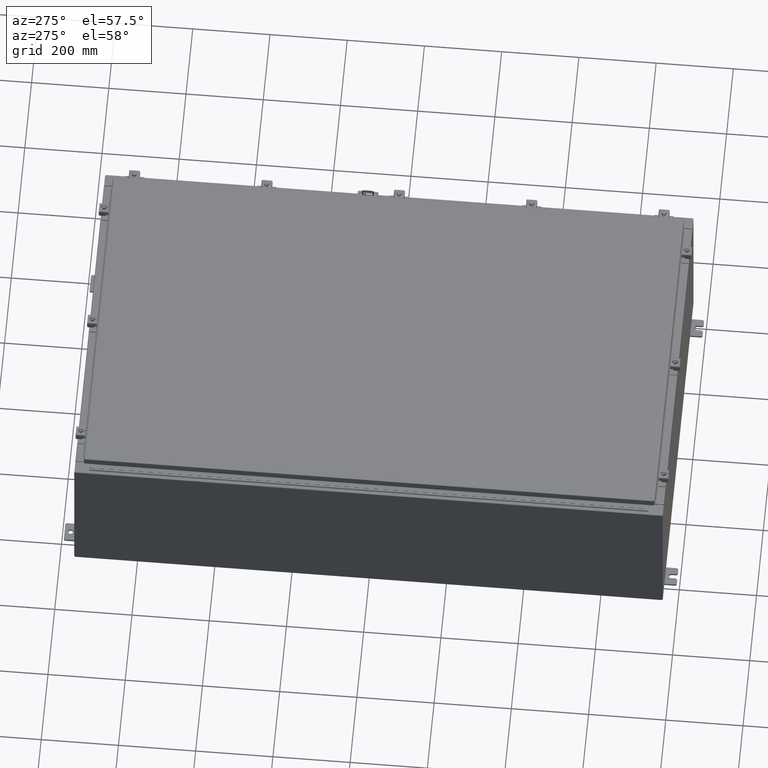
[diagram: clean part render]
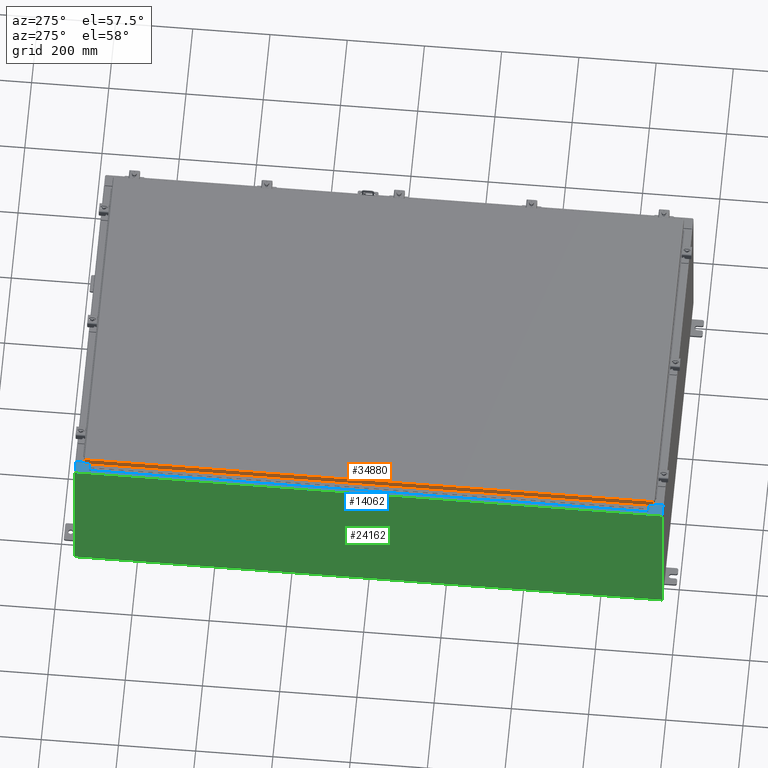
[diagram: same view with three faces highlighted in distinct colors, each labeled with its STEP entity id]
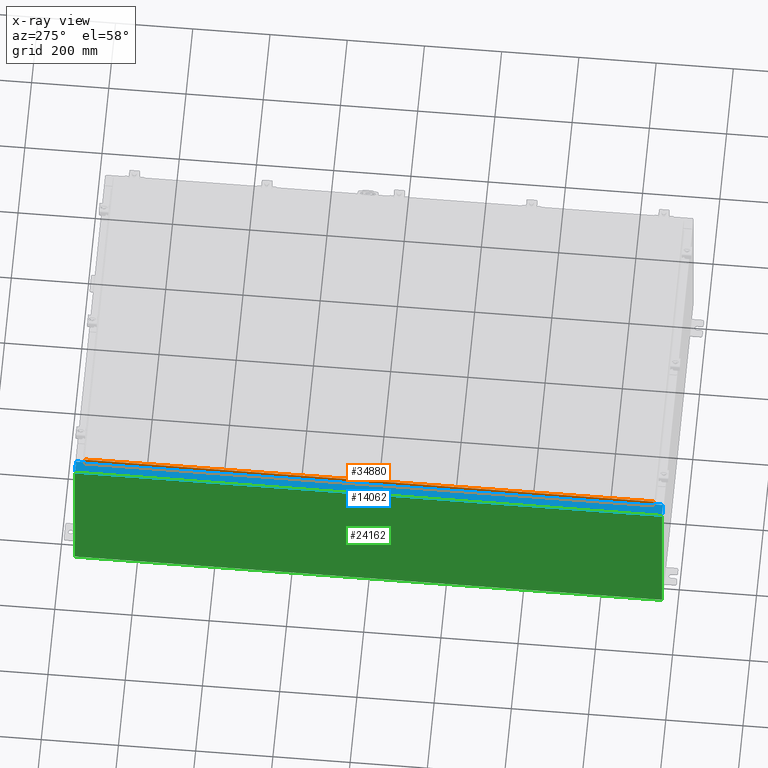
[diagram: x-ray of the same camera — body ghosted, the three highlighted faces saturated]
A machine part, auxiliary view with three faces highlighted in distinct colors.
The next image is the same camera in x-ray (body ghosted, the three faces saturated) — at least one of them is partly hidden behind the body in this view.
Their STEP definitions:

[orange] entity #34880 — the highlighted planar face has unit normal (1, -0, -0).
#1297 = DIRECTION ( 'NONE',  ( -3.034122441942816100E-015, 6.982962677686265900E-015, -1.000000000000000000 ) ) ;
#3169 = AXIS2_PLACEMENT_3D ( 'NONE', #19242, #53329, #24191 ) ;
#5973 = ORIENTED_EDGE ( 'NONE', *, *, #30756, .T. ) ;
#8525 = CARTESIAN_POINT ( 'NONE',  ( -17.07799999999999900, -29.09400000000000100, -0.08770000000000004200 ) ) ;
#11479 = VERTEX_POINT ( 'NONE', #31662 ) ;
#13355 = DIRECTION ( 'NONE',  ( -7.511783855542057500E-017, -1.000000000000000000, -7.511783855542072300E-017 ) ) ;
#15334 = CARTESIAN_POINT ( 'NONE',  ( -17.07799999999999900, -29.00515786437626500, -0.08769999999999787700 ) ) ;
#15352 = VECTOR ( 'NONE', #1297, 39.37007874015748100 ) ;
#18753 = VECTOR ( 'NONE', #13355, 39.37007874015748100 ) ;
#19242 = CARTESIAN_POINT ( 'NONE',  ( -17.07799999999999600, 1.282862446849468500E-015, 5.207755671951099000E-014 ) ) ;
#20959 = CARTESIAN_POINT ( 'NONE',  ( -17.07800000000000300, -29.00515786437626200, -0.7949999999999996000 ) ) ;
#22305 = VERTEX_POINT ( 'NONE', #15334 ) ;
#22413 = VERTEX_POINT ( 'NONE', #35809 ) ;
#24191 = DIRECTION ( 'NONE',  ( -3.034122441942816500E-015, 0.0000000000000000000, -1.000000000000000000 ) ) ;
#27842 = DIRECTION ( 'NONE',  ( -3.034122441942816100E-015, 6.982962677686265900E-015, -1.000000000000000000 ) ) ;
#29674 = VECTOR ( 'NONE', #27842, 39.37007874015748100 ) ;
#29874 = LINE ( 'NONE', #35324, #15352 ) ;
#30756 = EDGE_CURVE ( 'NONE', #22413, #11479, #29874, .T. ) ;
#31200 = LINE ( 'NONE', #37677, #29674 ) ;
#31662 = CARTESIAN_POINT ( 'NONE',  ( -17.07799999999999600, 29.00515786437626500, -0.7949999999999926000 ) ) ;
#34880 = ADVANCED_FACE ( 'NONE', ( #40405 ), #48471, .F. ) ;
#35324 = CARTESIAN_POINT ( 'NONE',  ( -17.07799999999999600, 29.00515786437626500, 2.546194915468487600E-013 ) ) ;
#35809 = CARTESIAN_POINT ( 'NONE',  ( -17.07799999999999600, 29.00515786437626500, -0.08769999999999567000 ) ) ;
#37677 = CARTESIAN_POINT ( 'NONE',  ( -17.07799999999999900, -29.00515786437626500, -0.07469999999999976700 ) ) ;
#38834 = EDGE_CURVE ( 'NONE', #58945, #11479, #42824, .T. ) ;
#39747 = ORIENTED_EDGE ( 'NONE', *, *, #42505, .F. ) ;
#40405 = FACE_OUTER_BOUND ( 'NONE', #50905, .T. ) ;
#42505 = EDGE_CURVE ( 'NONE', #22413, #22305, #57663, .T. ) ;
#42824 = LINE ( 'NONE', #50530, #54193 ) ;
#45783 = EDGE_CURVE ( 'NONE', #22305, #58945, #31200, .T. ) ;
#48471 = PLANE ( 'NONE',  #3169 ) ;
#50530 = CARTESIAN_POINT ( 'NONE',  ( -17.07800000000000300, -29.09400000000000100, -0.7949999999999997100 ) ) ;
#50905 = EDGE_LOOP ( 'NONE', ( #39747, #5973, #59512, #51317 ) ) ;
#51317 = ORIENTED_EDGE ( 'NONE', *, *, #45783, .F. ) ;
#53329 = DIRECTION ( 'NONE',  ( 1.000000000000000000, -7.511783855542035400E-017, -3.034122441942816500E-015 ) ) ;
#54193 = VECTOR ( 'NONE', #55415, 39.37007874015748100 ) ;
#55415 = DIRECTION ( 'NONE',  ( 7.511783855542072300E-017, 1.000000000000000000, 1.220664876525586700E-016 ) ) ;
#57663 = LINE ( 'NONE', #8525, #18753 ) ;
#58945 = VERTEX_POINT ( 'NONE', #20959 ) ;
#59512 = ORIENTED_EDGE ( 'NONE', *, *, #38834, .F. ) ;

[blue] entity #14062 — the highlighted planar face has unit normal (0, 0, -1).
#199 = VECTOR ( 'NONE', #5164, 39.37007874015748100 ) ;
#243 = CARTESIAN_POINT ( 'NONE',  ( -16.69970000000005700, 29.92529999999998900, 15.92530000000000500 ) ) ;
#938 = CARTESIAN_POINT ( 'NONE',  ( -16.75005000000005900, -28.59374999999999300, 15.92530000000000500 ) ) ;
#2490 = VECTOR ( 'NONE', #51860, 39.37007874015748100 ) ;
#2727 = CARTESIAN_POINT ( 'NONE',  ( -16.71270000000005900, -28.59374999999999300, 15.92530000000000500 ) ) ;
#3285 = CIRCLE ( 'NONE', #25313, 0.01867499999999949400 ) ;
#4526 = EDGE_CURVE ( 'NONE', #42860, #51228, #14998, .T. ) ;
#4803 = LINE ( 'NONE', #54142, #29152 ) ;
#5164 = DIRECTION ( 'NONE',  ( -1.000000000000000000, -4.379057701015053300E-047, -7.132762385546384700E-015 ) ) ;
#5585 = CARTESIAN_POINT ( 'NONE',  ( -1.138521944745543500E-013, -5.815213060988774200E-016, 15.92530000000012600 ) ) ;
#6009 = CARTESIAN_POINT ( 'NONE',  ( -16.69970000000005700, 28.63109999999998900, 15.92530000000000500 ) ) ;
#7473 = VECTOR ( 'NONE', #43420, 39.37007874015748100 ) ;
#7785 = CARTESIAN_POINT ( 'NONE',  ( -16.69970000000005700, -5.815213060988729800E-016, 15.92530000000000500 ) ) ;
#8145 = CARTESIAN_POINT ( 'NONE',  ( -16.75005000000005900, 28.59374999999999300, 15.92530000000000500 ) ) ;
#8875 = LINE ( 'NONE', #53649, #56041 ) ;
#9809 = CARTESIAN_POINT ( 'NONE',  ( -17.91230000000005500, -29.92530000000001100, 15.92529999999999800 ) ) ;
#10307 = VERTEX_POINT ( 'NONE', #61260 ) ;
#10463 = DIRECTION ( 'NONE',  ( 7.132762385546384700E-015, 3.651556366905946600E-017, -1.000000000000000000 ) ) ;
#10971 = CARTESIAN_POINT ( 'NONE',  ( -16.69970000000005700, -29.92530000000001800, 15.92530000000000400 ) ) ;
#11414 = VERTEX_POINT ( 'NONE', #21208 ) ;
#11557 = VECTOR ( 'NONE', #54524, 39.37007874015748100 ) ;
#11887 = EDGE_CURVE ( 'NONE', #10307, #28354, #4803, .T. ) ;
#12157 = CARTESIAN_POINT ( 'NONE',  ( -16.69970000000005700, -5.815213060988729800E-016, 15.92530000000000500 ) ) ;
#12456 = EDGE_CURVE ( 'NONE', #28354, #33319, #26005, .T. ) ;
#13098 = LINE ( 'NONE', #34334, #199 ) ;
#14062 = ADVANCED_FACE ( 'NONE', ( #24515 ), #24930, .F. ) ;
#14213 = CARTESIAN_POINT ( 'NONE',  ( -17.91230000000005500, 29.92529999999998900, 15.92530000000000000 ) ) ;
#14998 = LINE ( 'NONE', #7785, #26441 ) ;
#15381 = DIRECTION ( 'NONE',  ( -0.0000000000000000000, -1.000000000000000000, -0.0000000000000000000 ) ) ;
#15887 = VERTEX_POINT ( 'NONE', #6009 ) ;
#17643 = DIRECTION ( 'NONE',  ( -1.000000000000000000, 0.0000000000000000000, 0.0000000000000000000 ) ) ;
#18295 = EDGE_CURVE ( 'NONE', #47688, #51228, #8875, .T. ) ;
#19550 = DIRECTION ( 'NONE',  ( 1.000000000000000000, 0.0000000000000000000, 0.0000000000000000000 ) ) ;
#20936 = DIRECTION ( 'NONE',  ( -7.132762385546384700E-015, -3.651556366905946600E-017, 1.000000000000000000 ) ) ;
#21094 = ORIENTED_EDGE ( 'NONE', *, *, #48417, .F. ) ;
#21208 = CARTESIAN_POINT ( 'NONE',  ( -17.91230000000005500, 29.92529999999998900, 15.92530000000000000 ) ) ;
#21434 = DIRECTION ( 'NONE',  ( 1.000000000000000000, 0.0000000000000000000, 0.0000000000000000000 ) ) ;
#22376 = LINE ( 'NONE', #12157, #48286 ) ;
#22950 = DIRECTION ( 'NONE',  ( -7.132762385546384700E-015, -3.651556366905946600E-017, 1.000000000000000000 ) ) ;
#23536 = AXIS2_PLACEMENT_3D ( 'NONE', #52092, #22950, #56982 ) ;
#23863 = ORIENTED_EDGE ( 'NONE', *, *, #18295, .F. ) ;
#24515 = FACE_OUTER_BOUND ( 'NONE', #56693, .T. ) ;
#24930 = PLANE ( 'NONE',  #34098 ) ;
#25313 = AXIS2_PLACEMENT_3D ( 'NONE', #50119, #20936, #55027 ) ;
#26005 = LINE ( 'NONE', #45201, #11557 ) ;
#26441 = VECTOR ( 'NONE', #46716, 39.37007874015748100 ) ;
#27381 = CARTESIAN_POINT ( 'NONE',  ( -2.205772215826502400E-013, -29.92530000000007800, 15.92530000000012400 ) ) ;
#28329 = LINE ( 'NONE', #27381, #2490 ) ;
#28354 = VERTEX_POINT ( 'NONE', #2727 ) ;
#29038 = VERTEX_POINT ( 'NONE', #243 ) ;
#29152 = VECTOR ( 'NONE', #15381, 39.37007874015748100 ) ;
#29852 = ORIENTED_EDGE ( 'NONE', *, *, #11887, .F. ) ;
#30960 = EDGE_CURVE ( 'NONE', #54197, #57899, #51929, .T. ) ;
#31641 = VECTOR ( 'NONE', #17643, 39.37007874015748100 ) ;
#32774 = EDGE_CURVE ( 'NONE', #33319, #47688, #3285, .T. ) ;
#33086 = CARTESIAN_POINT ( 'NONE',  ( -16.69970000000005700, -28.63109999999999600, 15.92530000000000500 ) ) ;
#33319 = VERTEX_POINT ( 'NONE', #938 ) ;
#33838 = ORIENTED_EDGE ( 'NONE', *, *, #54187, .F. ) ;
#34098 = AXIS2_PLACEMENT_3D ( 'NONE', #5585, #10463, #44535 ) ;
#34334 = CARTESIAN_POINT ( 'NONE',  ( -1.138521944745543500E-013, 29.92529999999998900, 15.92530000000012600 ) ) ;
#34674 = ORIENTED_EDGE ( 'NONE', *, *, #50378, .T. ) ;
#35842 = VECTOR ( 'NONE', #21434, 39.37007874015748100 ) ;
#37820 = ORIENTED_EDGE ( 'NONE', *, *, #32774, .F. ) ;
#38310 = CARTESIAN_POINT ( 'NONE',  ( -16.75005000000005900, -28.63109999999998900, 15.92530000000000500 ) ) ;
#39698 = EDGE_CURVE ( 'NONE', #57899, #10307, #48779, .T. ) ;
#41697 = ORIENTED_EDGE ( 'NONE', *, *, #61542, .T. ) ;
#41878 = ORIENTED_EDGE ( 'NONE', *, *, #39698, .F. ) ;
#42007 = CARTESIAN_POINT ( 'NONE',  ( -16.69970000000005700, 28.63109999999998900, 15.92530000000000500 ) ) ;
#42860 = VERTEX_POINT ( 'NONE', #10971 ) ;
#43420 = DIRECTION ( 'NONE',  ( -0.0000000000000000000, 1.000000000000000000, 3.651556366905946600E-017 ) ) ;
#44535 = DIRECTION ( 'NONE',  ( -1.000000000000000000, 0.0000000000000000000, -7.132762385546384700E-015 ) ) ;
#44593 = LINE ( 'NONE', #42007, #31641 ) ;
#45201 = CARTESIAN_POINT ( 'NONE',  ( -16.71270000000005900, -28.59374999999999300, 15.92530000000000500 ) ) ;
#46317 = LINE ( 'NONE', #14213, #7473 ) ;
#46716 = DIRECTION ( 'NONE',  ( 0.0000000000000000000, 1.000000000000000000, 3.651556366905946600E-017 ) ) ;
#47104 = ORIENTED_EDGE ( 'NONE', *, *, #4526, .T. ) ;
#47250 = ORIENTED_EDGE ( 'NONE', *, *, #30960, .F. ) ;
#47688 = VERTEX_POINT ( 'NONE', #38310 ) ;
#48286 = VECTOR ( 'NONE', #56004, 39.37007874015748100 ) ;
#48417 = EDGE_CURVE ( 'NONE', #15887, #54197, #44593, .T. ) ;
#48779 = LINE ( 'NONE', #55500, #35842 ) ;
#50119 = CARTESIAN_POINT ( 'NONE',  ( -16.75005000000005900, -28.61242499999999100, 15.92530000000000500 ) ) ;
#50378 = EDGE_CURVE ( 'NONE', #15887, #29038, #22376, .T. ) ;
#51228 = VERTEX_POINT ( 'NONE', #33086 ) ;
#51758 = ORIENTED_EDGE ( 'NONE', *, *, #60625, .T. ) ;
#51860 = DIRECTION ( 'NONE',  ( 1.000000000000000000, -3.566381192773192400E-015, 7.132762385546384700E-015 ) ) ;
#51929 = CIRCLE ( 'NONE', #23536, 0.01867499999999949400 ) ;
#52092 = CARTESIAN_POINT ( 'NONE',  ( -16.75005000000005900, 28.61242499999999100, 15.92530000000000500 ) ) ;
#53649 = CARTESIAN_POINT ( 'NONE',  ( -16.75005000000005900, -28.63109999999998900, 15.92530000000000500 ) ) ;
#54142 = CARTESIAN_POINT ( 'NONE',  ( -16.71270000000005900, 28.59374999999998200, 15.92530000000000500 ) ) ;
#54187 = EDGE_CURVE ( 'NONE', #58005, #11414, #46317, .T. ) ;
#54197 = VERTEX_POINT ( 'NONE', #62761 ) ;
#54524 = DIRECTION ( 'NONE',  ( -1.000000000000000000, 0.0000000000000000000, 0.0000000000000000000 ) ) ;
#55027 = DIRECTION ( 'NONE',  ( 1.000000000000000000, 0.0000000000000000000, 0.0000000000000000000 ) ) ;
#55500 = CARTESIAN_POINT ( 'NONE',  ( -16.75005000000005900, 28.59374999999999300, 15.92530000000000500 ) ) ;
#56004 = DIRECTION ( 'NONE',  ( 0.0000000000000000000, 1.000000000000000000, 3.651556366905946600E-017 ) ) ;
#56041 = VECTOR ( 'NONE', #19550, 39.37007874015748100 ) ;
#56693 = EDGE_LOOP ( 'NONE', ( #21094, #34674, #51758, #33838, #41697, #47104, #23863, #37820, #59393, #29852, #41878, #47250 ) ) ;
#56982 = DIRECTION ( 'NONE',  ( 1.000000000000000000, 0.0000000000000000000, 0.0000000000000000000 ) ) ;
#57899 = VERTEX_POINT ( 'NONE', #8145 ) ;
#58005 = VERTEX_POINT ( 'NONE', #9809 ) ;
#59393 = ORIENTED_EDGE ( 'NONE', *, *, #12456, .F. ) ;
#60625 = EDGE_CURVE ( 'NONE', #29038, #11414, #13098, .T. ) ;
#61260 = CARTESIAN_POINT ( 'NONE',  ( -16.71270000000005900, 28.59374999999999300, 15.92530000000000500 ) ) ;
#61542 = EDGE_CURVE ( 'NONE', #58005, #42860, #28329, .T. ) ;
#62761 = CARTESIAN_POINT ( 'NONE',  ( -16.75005000000005900, 28.63109999999998900, 15.92530000000000900 ) ) ;

[green] entity #24162 — the highlighted planar face has unit normal (1, 0, 0).
#1067 = DIRECTION ( 'NONE',  ( 0.0000000000000000000, 1.000000000000000000, 0.0000000000000000000 ) ) ;
#2330 = VECTOR ( 'NONE', #36409, 39.37007874015748100 ) ;
#2398 = CARTESIAN_POINT ( 'NONE',  ( -18.00000000000000400, 29.92529999999998900, 0.01299999999999984700 ) ) ;
#3161 = EDGE_CURVE ( 'NONE', #6683, #33118, #26624, .T. ) ;
#4435 = VERTEX_POINT ( 'NONE', #31371 ) ;
#6586 = EDGE_CURVE ( 'NONE', #8618, #33118, #29271, .T. ) ;
#6683 = VERTEX_POINT ( 'NONE', #47044 ) ;
#6944 = DIRECTION ( 'NONE',  ( -3.430827668758847900E-015, 0.0000000000000000000, 1.000000000000000000 ) ) ;
#8618 = VERTEX_POINT ( 'NONE', #46561 ) ;
#15841 = ORIENTED_EDGE ( 'NONE', *, *, #57210, .T. ) ;
#16289 = VECTOR ( 'NONE', #31721, 39.37007874015748100 ) ;
#23884 = VECTOR ( 'NONE', #6944, 39.37007874015748100 ) ;
#24162 = ADVANCED_FACE ( 'NONE', ( #52609 ), #50540, .F. ) ;
#26624 = LINE ( 'NONE', #2398, #2330 ) ;
#29271 = LINE ( 'NONE', #60880, #16289 ) ;
#31152 = DIRECTION ( 'NONE',  ( 3.430827668758847900E-015, 0.0000000000000000000, -1.000000000000000000 ) ) ;
#31179 = CARTESIAN_POINT ( 'NONE',  ( -18.00000000000000400, -29.92530000000001100, -6.201571169367084500E-014 ) ) ;
#31371 = CARTESIAN_POINT ( 'NONE',  ( -18.00000000000006000, -29.92530000000001100, 15.83759999999999700 ) ) ;
#31721 = DIRECTION ( 'NONE',  ( 3.430827668758847900E-015, 0.0000000000000000000, -1.000000000000000000 ) ) ;
#33118 = VERTEX_POINT ( 'NONE', #33520 ) ;
#33520 = CARTESIAN_POINT ( 'NONE',  ( -18.00000000000000400, 29.92529999999998600, 0.01299999999999984800 ) ) ;
#36409 = DIRECTION ( 'NONE',  ( -0.0000000000000000000, 1.000000000000000000, -0.0000000000000000000 ) ) ;
#37445 = LINE ( 'NONE', #59350, #61763 ) ;
#40445 = AXIS2_PLACEMENT_3D ( 'NONE', #40796, #60338, #31152 ) ;
#40796 = CARTESIAN_POINT ( 'NONE',  ( -18.00000000000000400, 0.0000000000000000000, -6.201571169367084500E-014 ) ) ;
#46561 = CARTESIAN_POINT ( 'NONE',  ( -18.00000000000005700, 29.92529999999998900, 15.83759999999999700 ) ) ;
#47044 = CARTESIAN_POINT ( 'NONE',  ( -18.00000000000000400, -29.92530000000001100, 0.01299999999999984700 ) ) ;
#48565 = ORIENTED_EDGE ( 'NONE', *, *, #52066, .T. ) ;
#50540 = PLANE ( 'NONE',  #40445 ) ;
#51323 = LINE ( 'NONE', #31179, #23884 ) ;
#52066 = EDGE_CURVE ( 'NONE', #4435, #8618, #37445, .T. ) ;
#52609 = FACE_OUTER_BOUND ( 'NONE', #60035, .T. ) ;
#57210 = EDGE_CURVE ( 'NONE', #6683, #4435, #51323, .T. ) ;
#59350 = CARTESIAN_POINT ( 'NONE',  ( -18.00000000000006000, -29.92530000000001800, 15.83759999999999700 ) ) ;
#60035 = EDGE_LOOP ( 'NONE', ( #48565, #63040, #60966, #15841 ) ) ;
#60338 = DIRECTION ( 'NONE',  ( 1.000000000000000000, 0.0000000000000000000, 3.430827668758847900E-015 ) ) ;
#60880 = CARTESIAN_POINT ( 'NONE',  ( -18.00000000000000400, 29.92529999999998900, -6.201571169367084500E-014 ) ) ;
#60966 = ORIENTED_EDGE ( 'NONE', *, *, #3161, .F. ) ;
#61763 = VECTOR ( 'NONE', #1067, 39.37007874015748100 ) ;
#63040 = ORIENTED_EDGE ( 'NONE', *, *, #6586, .T. ) ;